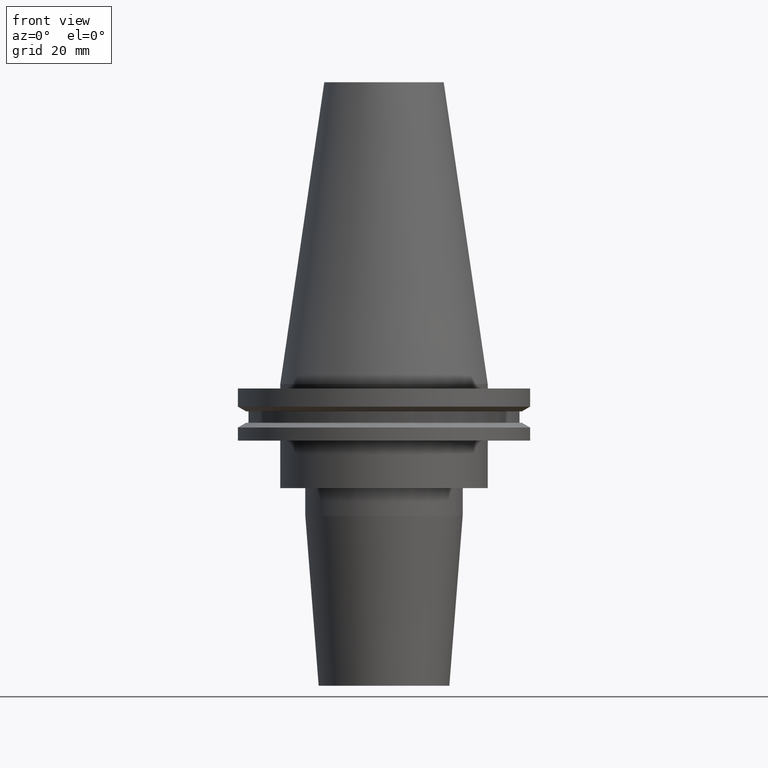
[diagram: clean part render]
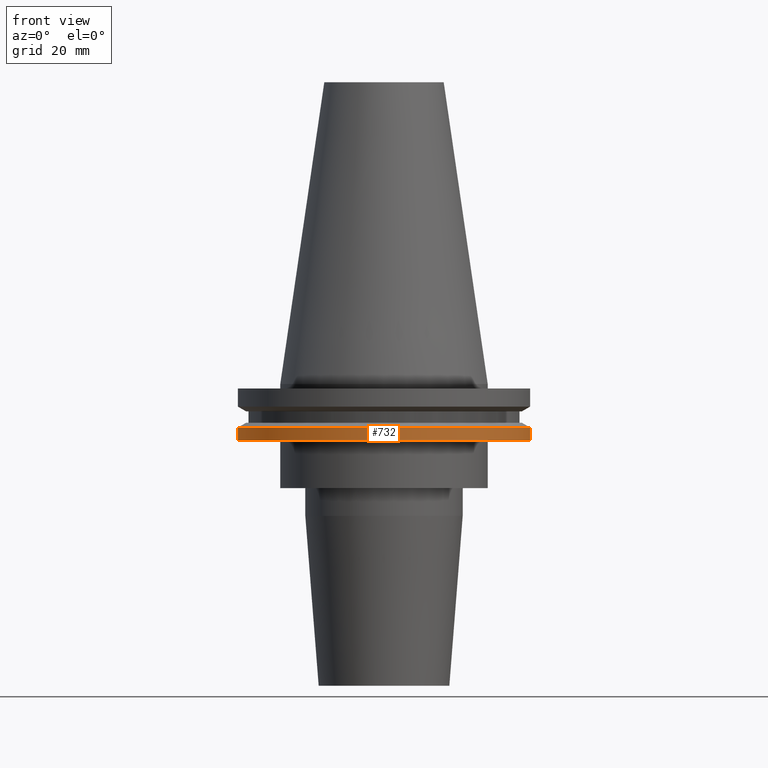
[diagram: same view with one face highlighted and labeled with its STEP entity id]
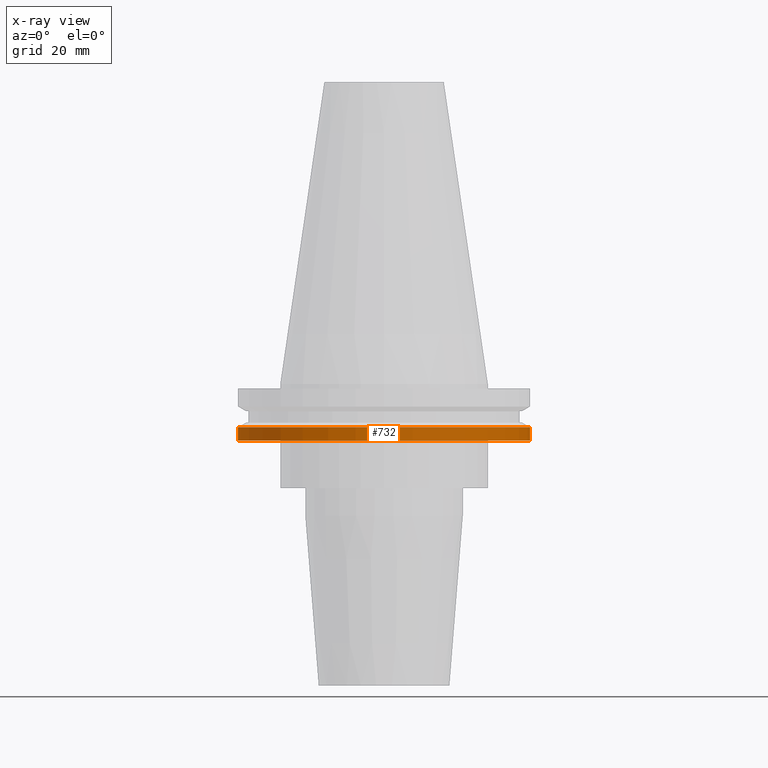
[diagram: x-ray of the same camera — body ghosted, the highlighted face saturated]
A machine part, front view. The second image highlights one B-rep face of the part: STEP entity #732.
The next image is the same camera in x-ray: the body ghosted, the highlighted face saturated — about 0% of this face is hidden behind the body in this view.
In plain terms, the highlighted cylindrical surface (partial cylindrical patch) has radius 49.215 mm, axis along (-0, -0, 1).
Its self-contained STEP definition (entity closure, byte-faithful):
#19 = CARTESIAN_POINT ( 'NONE',  ( 49.21499999999998920, 0.000000000000000000, -14.65761014474876944 ) ) ;
#62 = CIRCLE ( 'NONE', #493, 49.21499999999998920 ) ;
#73 = VECTOR ( 'NONE', #517, 1000.000000000000000 ) ;
#89 = DIRECTION ( 'NONE',  ( -0.000000000000000000, -0.000000000000000000, 1.000000000000000000 ) ) ;
#96 = CARTESIAN_POINT ( 'NONE',  ( 0.000000000000000000, 0.000000000000000000, 101.5999999999999943 ) ) ;
#128 = DIRECTION ( 'NONE',  ( -0.000000000000000000, -0.000000000000000000, 1.000000000000000000 ) ) ;
#170 = CARTESIAN_POINT ( 'NONE',  ( 49.21499999999998920, 0.000000000000000000, 101.5999999999999943 ) ) ;
#221 = LINE ( 'NONE', #170, #310 ) ;
#225 = EDGE_CURVE ( 'NONE', #760, #727, #62, .T. ) ;
#238 = CARTESIAN_POINT ( 'NONE',  ( -49.21499999999998920, 6.027099222003697037E-15, -14.65761014474876944 ) ) ;
#251 = LINE ( 'NONE', #825, #73 ) ;
#310 = VECTOR ( 'NONE', #576, 1000.000000000000000 ) ;
#354 = CARTESIAN_POINT ( 'NONE',  ( 0.000000000000000000, 0.000000000000000000, -14.65761014474876944 ) ) ;
#366 = AXIS2_PLACEMENT_3D ( 'NONE', #834, #128, #458 ) ;
#395 = VERTEX_POINT ( 'NONE', #543 ) ;
#455 = ORIENTED_EDGE ( 'NONE', *, *, #731, .T. ) ;
#458 = DIRECTION ( 'NONE',  ( 1.000000000000000000, 0.000000000000000000, 0.000000000000000000 ) ) ;
#463 = ORIENTED_EDGE ( 'NONE', *, *, #851, .F. ) ;
#493 = AXIS2_PLACEMENT_3D ( 'NONE', #354, #89, #775 ) ;
#512 = EDGE_CURVE ( 'NONE', #395, #534, #677, .T. ) ;
#517 = DIRECTION ( 'NONE',  ( -0.000000000000000000, -0.000000000000000000, 1.000000000000000000 ) ) ;
#534 = VERTEX_POINT ( 'NONE', #550 ) ;
#543 = CARTESIAN_POINT ( 'NONE',  ( -49.21499999999998920, 6.027099222003697037E-15, -19.04999999999999716 ) ) ;
#550 = CARTESIAN_POINT ( 'NONE',  ( 49.21499999999998920, 0.000000000000000000, -19.04999999999999716 ) ) ;
#576 = DIRECTION ( 'NONE',  ( -0.000000000000000000, -0.000000000000000000, 1.000000000000000000 ) ) ;
#600 = ORIENTED_EDGE ( 'NONE', *, *, #225, .F. ) ;
#640 = DIRECTION ( 'NONE',  ( -0.000000000000000000, -0.000000000000000000, 1.000000000000000000 ) ) ;
#677 = CIRCLE ( 'NONE', #366, 49.21499999999998920 ) ;
#702 = CYLINDRICAL_SURFACE ( 'NONE', #774, 49.21499999999998920 ) ;
#718 = ORIENTED_EDGE ( 'NONE', *, *, #512, .T. ) ;
#727 = VERTEX_POINT ( 'NONE', #19 ) ;
#731 = EDGE_CURVE ( 'NONE', #534, #727, #221, .T. ) ;
#732 = ADVANCED_FACE ( 'NONE', ( #833 ), #702, .T. ) ;
#760 = VERTEX_POINT ( 'NONE', #238 ) ;
#774 = AXIS2_PLACEMENT_3D ( 'NONE', #96, #640, #819 ) ;
#775 = DIRECTION ( 'NONE',  ( 1.000000000000000000, 0.000000000000000000, 0.000000000000000000 ) ) ;
#816 = EDGE_LOOP ( 'NONE', ( #463, #718, #455, #600 ) ) ;
#819 = DIRECTION ( 'NONE',  ( 1.000000000000000000, 0.000000000000000000, 0.000000000000000000 ) ) ;
#825 = CARTESIAN_POINT ( 'NONE',  ( -49.21499999999998920, 6.027099222003697037E-15, 101.5999999999999943 ) ) ;
#833 = FACE_OUTER_BOUND ( 'NONE', #816, .T. ) ;
#834 = CARTESIAN_POINT ( 'NONE',  ( 0.000000000000000000, 0.000000000000000000, -19.04999999999999716 ) ) ;
#851 = EDGE_CURVE ( 'NONE', #395, #760, #251, .T. ) ;